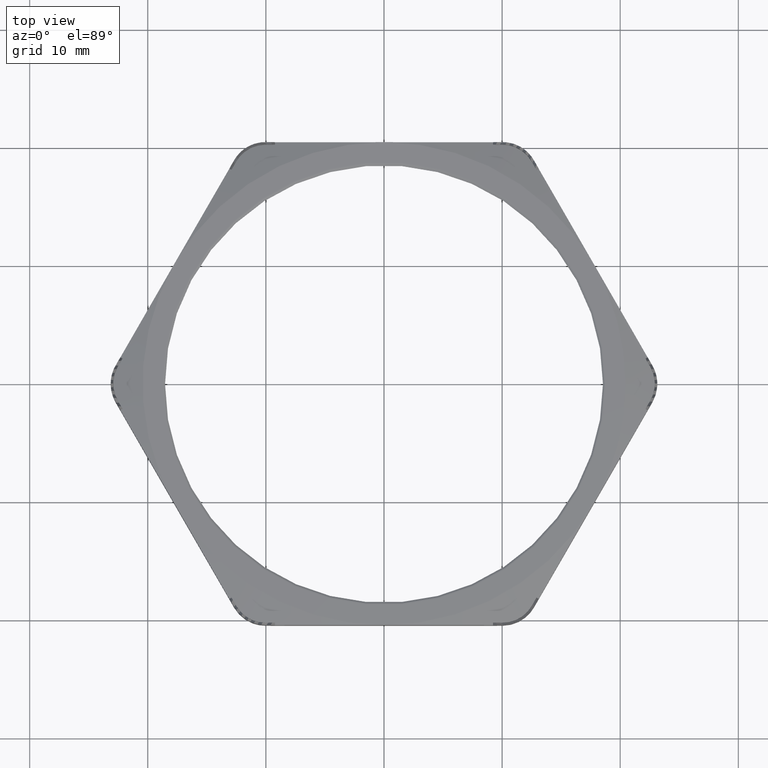
[diagram: clean part render]
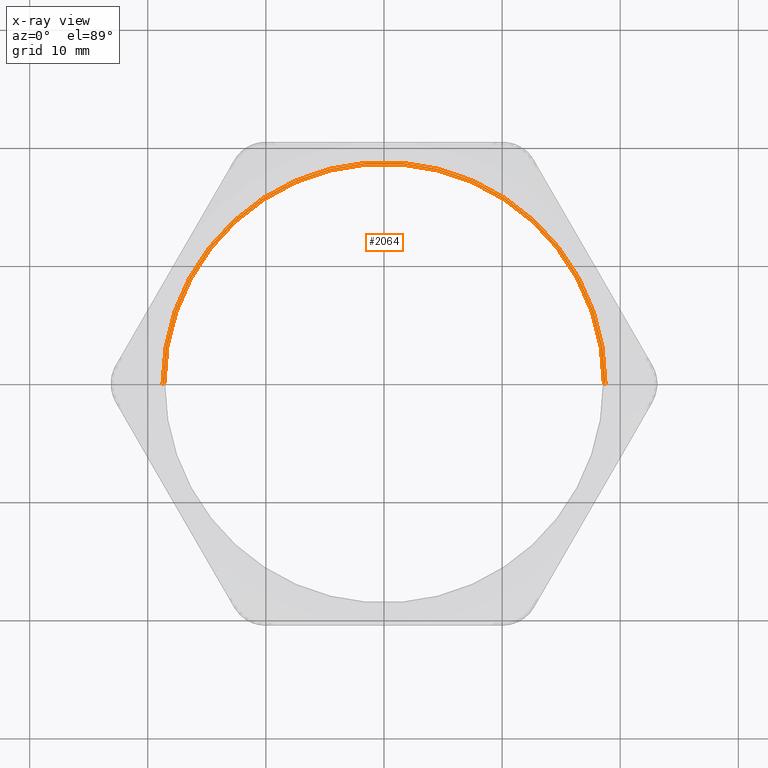
[diagram: x-ray — body ghosted, one internal face saturated and labeled with its STEP entity id]
A machine part, top view, then the same camera in x-ray: the body is ghosted and one INTERNAL B-rep face — a face not visible from any outside direction — is saturated and labeled: STEP entity #2064.
In plain terms, the highlighted toroidal blend (fillet) surface has major radius 18.7452 mm and minor (blend) radius 0.2032 mm.
Its self-contained STEP definition (entity closure, byte-faithful):
#1887 = VERTEX_POINT ( 'NONE', #5609 ) ;
#1905 = VERTEX_POINT ( 'NONE', #5634 ) ;
#2032 = EDGE_CURVE ( 'NONE', #2052, #2088, #5907, .T. ) ;
#2052 = VERTEX_POINT ( 'NONE', #5933 ) ;
#2053 = ORIENTED_EDGE ( 'NONE', *, *, #2109, .T. ) ;
#2064 = ADVANCED_FACE ( 'NONE', ( #5978 ), #5977, .T. ) ;
#2086 = ORIENTED_EDGE ( 'NONE', *, *, #2087, .T. ) ;
#2087 = EDGE_CURVE ( 'NONE', #1887, #1905, #6001, .T. ) ;
#2088 = VERTEX_POINT ( 'NONE', #6062 ) ;
#2109 = EDGE_CURVE ( 'NONE', #1905, #2088, #6083, .T. ) ;
#2110 = ORIENTED_EDGE ( 'NONE', *, *, #2032, .F. ) ;
#2143 = EDGE_LOOP ( 'NONE', ( #2086, #2053, #2110, #2147 ) ) ;
#2147 = ORIENTED_EDGE ( 'NONE', *, *, #2148, .F. ) ;
#2148 = EDGE_CURVE ( 'NONE', #1887, #2052, #6144, .T. ) ;
#5609 = CARTESIAN_POINT ( 'NONE',  ( -0.7330166820242031100, 0.0000000000000000000, 0.1582583178212668700 ) ) ;
#5634 = CARTESIAN_POINT ( 'NONE',  ( 0.7330166820242030000, 9.007379355666500500E-017, 0.1582583178212668700 ) ) ;
#5903 = DIRECTION ( 'NONE',  ( -1.000000000000000000, 0.0000000000000000000, 0.0000000000000000000 ) ) ;
#5904 = DIRECTION ( 'NONE',  ( 0.0000000000000000000, 0.0000000000000000000, -1.000000000000000000 ) ) ;
#5905 = CARTESIAN_POINT ( 'NONE',  ( 0.0000000000000000000, 0.0000000000000000000, 0.1600000000000000000 ) ) ;
#5906 = AXIS2_PLACEMENT_3D ( 'NONE', #5905, #5904, #5903 ) ;
#5907 = CIRCLE ( 'NONE', #5906, 0.7379999999999999900 ) ;
#5933 = CARTESIAN_POINT ( 'NONE',  ( -0.7379999999999999900, 0.0000000000000000000, 0.1600000000000000000 ) ) ;
#5973 = DIRECTION ( 'NONE',  ( -1.000000000000000000, 0.0000000000000000000, 0.0000000000000000000 ) ) ;
#5975 = DIRECTION ( 'NONE',  ( 0.0000000000000000000, 0.0000000000000000000, -1.000000000000000000 ) ) ;
#5976 = AXIS2_PLACEMENT_3D ( 'NONE', #5985, #5975, #5973 ) ;
#5977 = TOROIDAL_SURFACE ( 'NONE', #5976, 0.7379999999999999900, 0.008000000000000000200 ) ;
#5978 = FACE_OUTER_BOUND ( 'NONE', #2143, .T. ) ;
#5985 = CARTESIAN_POINT ( 'NONE',  ( 0.0000000000000000000, 0.0000000000000000000, 0.1520000000000000000 ) ) ;
#5997 = DIRECTION ( 'NONE',  ( -1.000000000000000000, 0.0000000000000000000, 0.0000000000000000000 ) ) ;
#5998 = DIRECTION ( 'NONE',  ( 0.0000000000000000000, 0.0000000000000000000, -1.000000000000000000 ) ) ;
#5999 = CARTESIAN_POINT ( 'NONE',  ( 0.0000000000000000000, 0.0000000000000000000, 0.1582583178212668700 ) ) ;
#6000 = AXIS2_PLACEMENT_3D ( 'NONE', #5999, #5998, #5997 ) ;
#6001 = CIRCLE ( 'NONE', #6000, 0.7330166820242031100 ) ;
#6062 = CARTESIAN_POINT ( 'NONE',  ( 0.7379999999999999900, 9.037893377707468800E-017, 0.1600000000000000000 ) ) ;
#6079 = DIRECTION ( 'NONE',  ( -1.000000000000000000, -1.224646799147354200E-016, 0.0000000000000000000 ) ) ;
#6080 = DIRECTION ( 'NONE',  ( -1.224646799147353200E-016, 1.000000000000000000, 0.0000000000000000000 ) ) ;
#6081 = CARTESIAN_POINT ( 'NONE',  ( 0.7379999999999999900, 9.037893377707467600E-017, 0.1520000000000000000 ) ) ;
#6082 = AXIS2_PLACEMENT_3D ( 'NONE', #6081, #6080, #6079 ) ;
#6083 = CIRCLE ( 'NONE', #6082, 0.008000000000000024500 ) ;
#6140 = DIRECTION ( 'NONE',  ( 0.0000000000000000000, 0.0000000000000000000, -1.000000000000000000 ) ) ;
#6141 = DIRECTION ( 'NONE',  ( 0.0000000000000000000, -1.000000000000000000, 0.0000000000000000000 ) ) ;
#6142 = AXIS2_PLACEMENT_3D ( 'NONE', #6150, #6141, #6140 ) ;
#6144 = CIRCLE ( 'NONE', #6142, 0.008000000000000007100 ) ;
#6150 = CARTESIAN_POINT ( 'NONE',  ( -0.7379999999999999900, 0.0000000000000000000, 0.1520000000000000000 ) ) ;